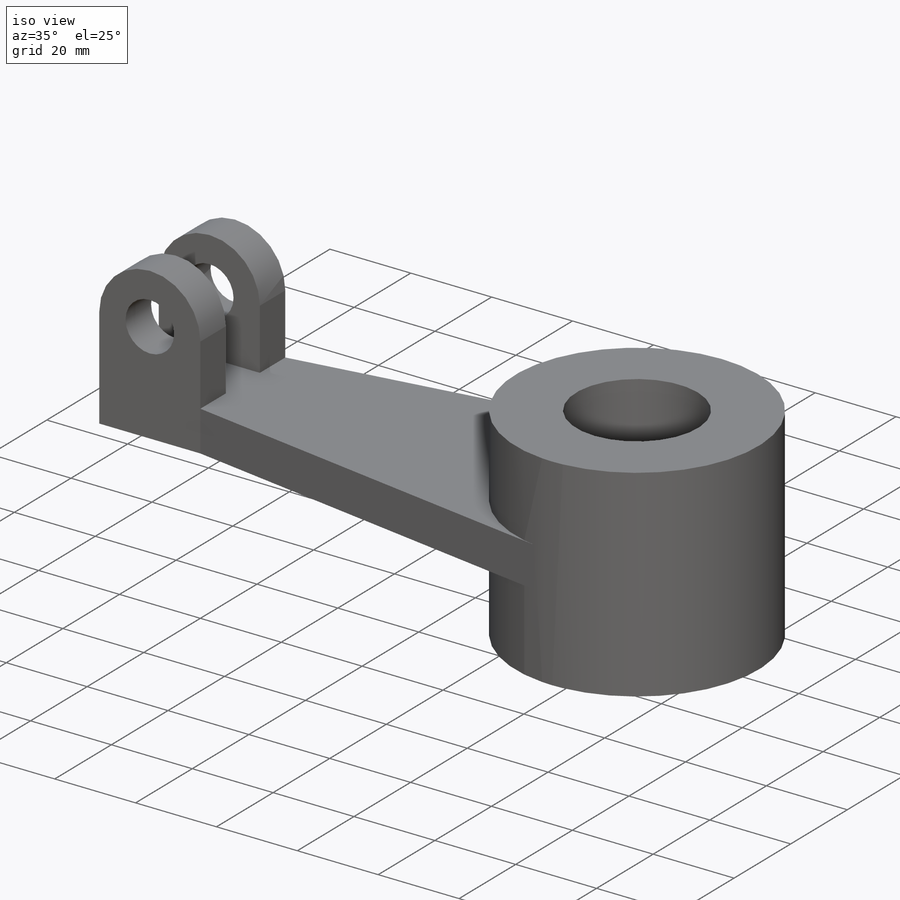
[diagram: iso view]
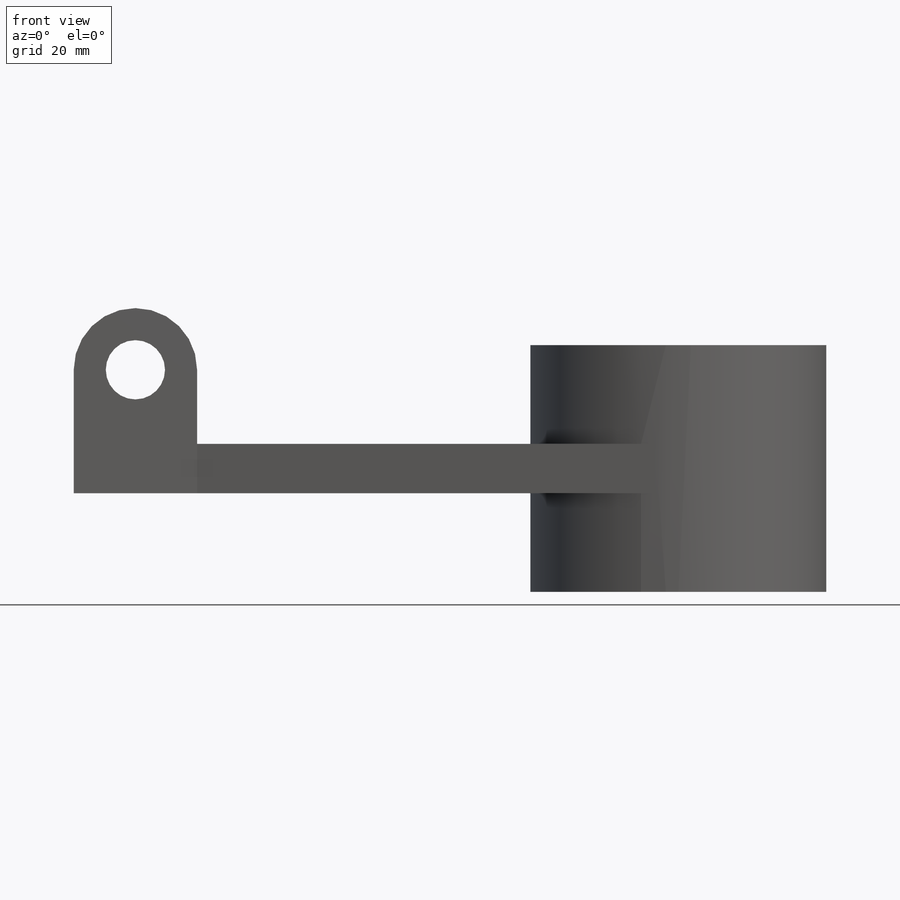
[diagram: front view]
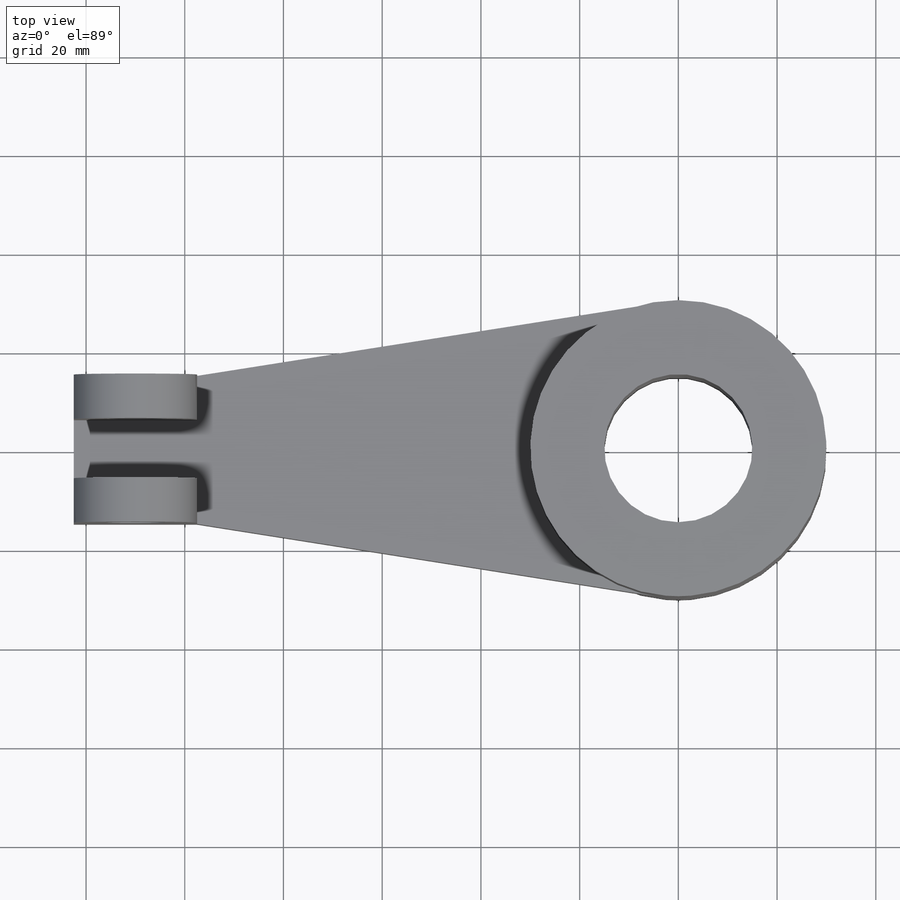
[diagram: top view]
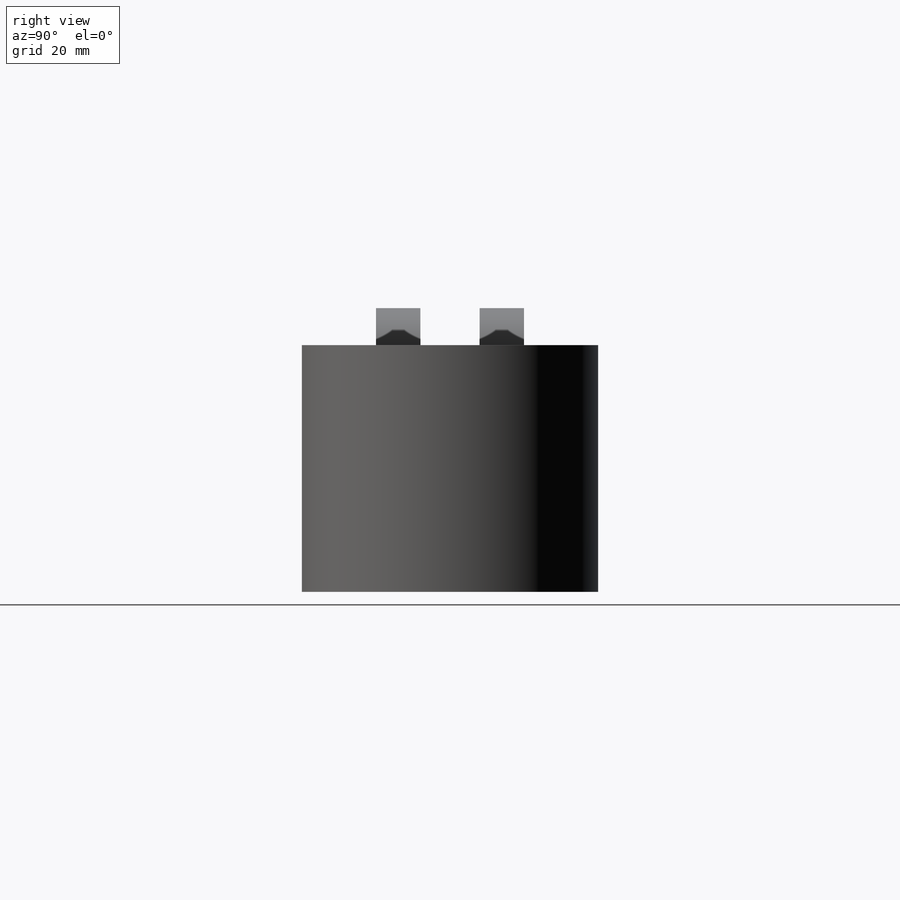
[diagram: right view]
SOLIDWORKS PART (.sldprt)
format: sldprt  version: not decoded by parser v0  size: 209,920 bytes
history: native  units: mm
features: sketch x7, extrude x4, cut_extrude x3, material x1, mirror x1 (+10 scaffold rows collapsed)
feature tree (26):
  scaffold x10  (default folders/planes/origin — collapsed)
  material  "Material <not specified>"
  sketch  "Sketch6"  dims[D1=60.0mm D2=30.0mm D3=110.0mm D4=122.5mm D5=25.0mm D6=15.0mm]
  extrude  "Boss-Extrude2"  Depth=10mm
  sketch  "Sketch7"
  extrude  "Boss-Extrude3"  Depth=50mm
  sketch  "Sketch8"  dims[D1=30.0mm]
  cut_extrude  "Cut-Extrude2"  Depth=50mm
  mirror  "Mirror1"
  sketch  "Sketch9"  dims[D1=15.0mm D2=25.0mm]
  extrude  "Boss-Extrude4"  Depth=9mm
  sketch  "Sketch10"  dims[D1=12.0mm]
  cut_extrude  "Cut-Extrude3"  Depth=9mm
  sketch  "Sketch11"  dims[D1=15.0mm D2=25.0mm]
  extrude  "Boss-Extrude5"  Depth=9mm
  sketch  "Sketch12"  dims[D1=12.0mm]
  cut_extrude  "Cut-Extrude4"  Depth=9mm
decode coverage: 13 of 15 modeling features carry decoded parameters
note: suppression state not decoded; provenance and decode notes live in map.json
